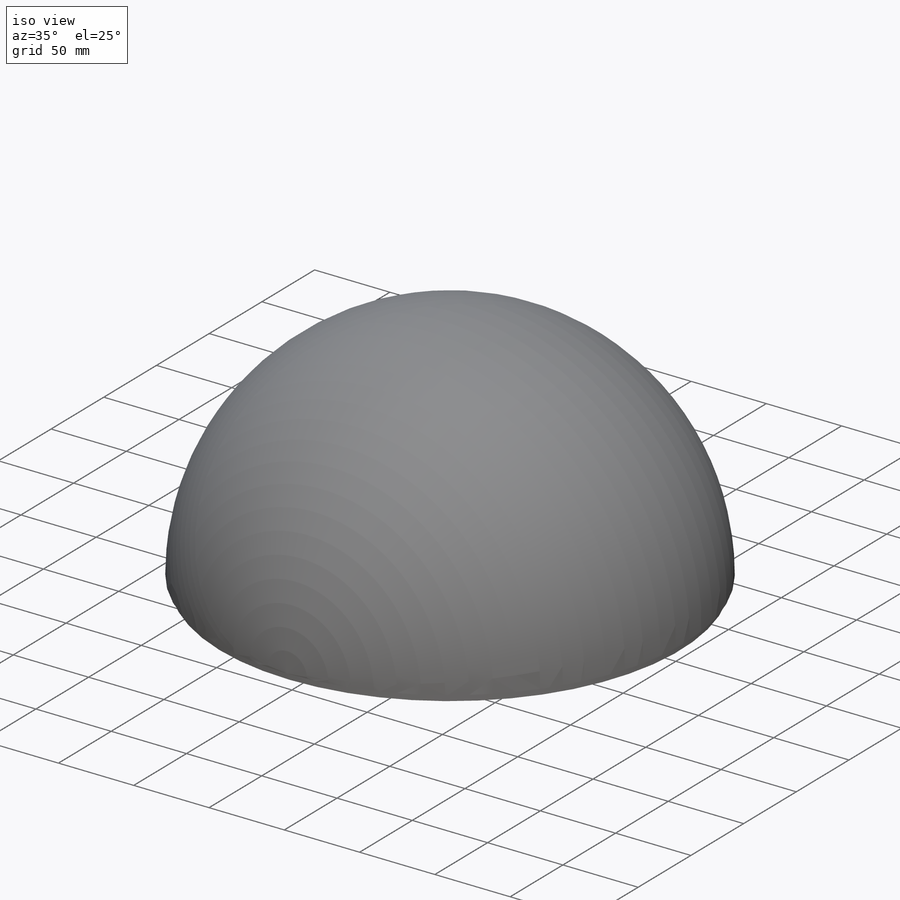
[diagram: iso view]
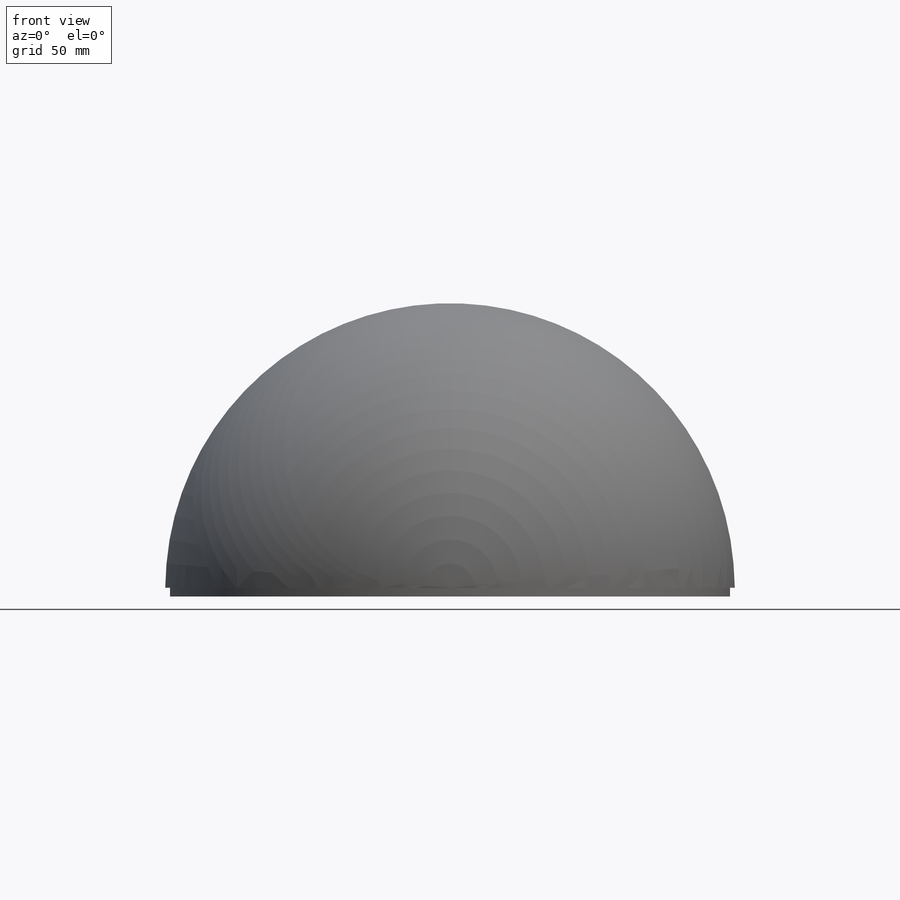
[diagram: front view]
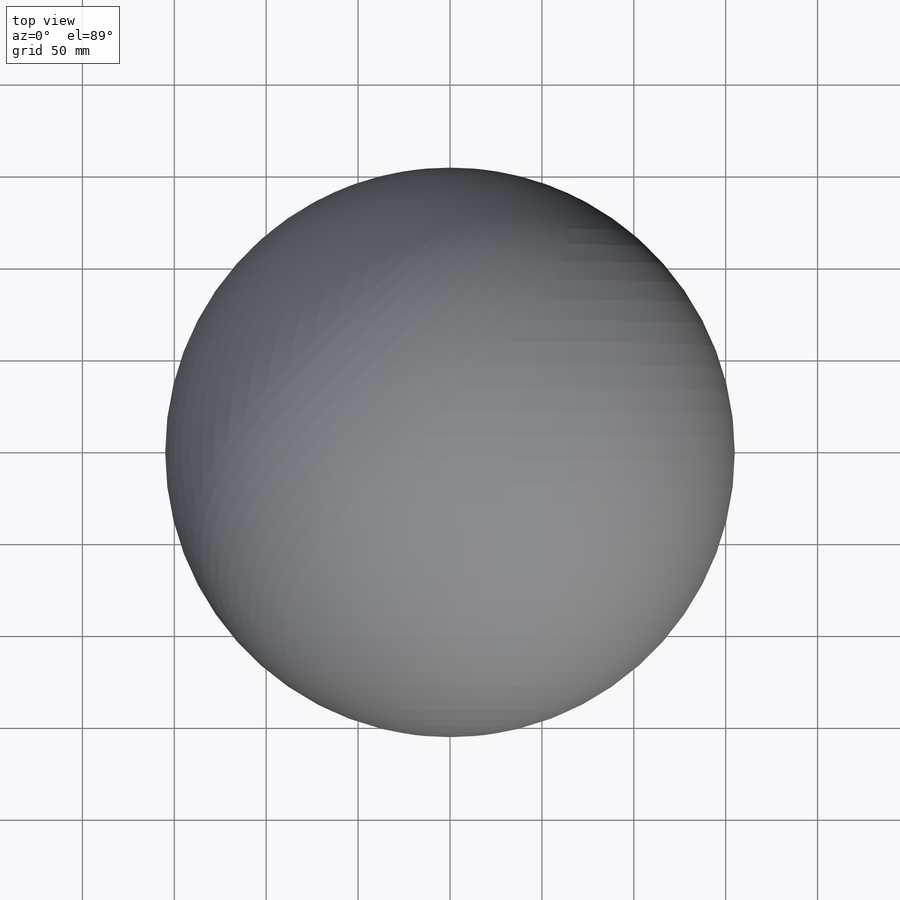
[diagram: top view]
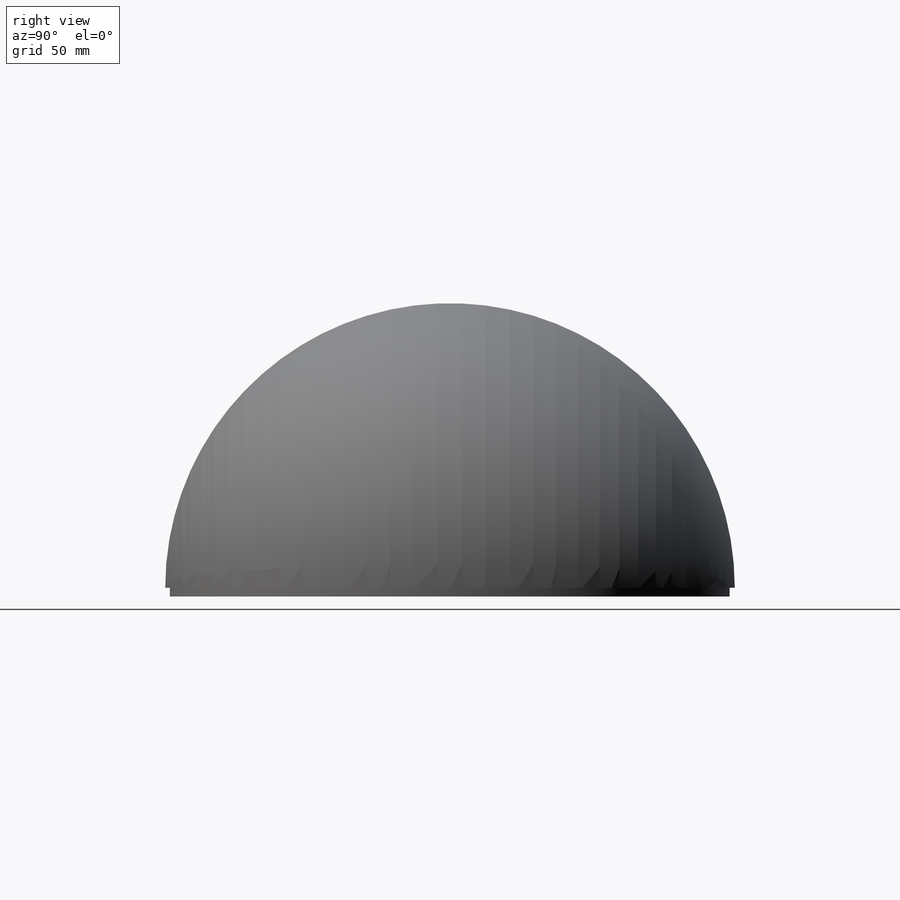
[diagram: right view]
SOLIDWORKS PART (.sldprt)
format: sldprt  version: not decoded by parser v0  size: 214,016 bytes
history: native  units: mm
features: sketch x3, material x1, revolve x1, shell x1, extrude x1 (+12 scaffold rows collapsed)
feature tree (19):
  scaffold x12  (default folders/planes/origin — collapsed)
  material  "Material <not specified>"
  sketch  "Sketch1"  dims[D1=304.8mm]
  revolve  "Revolve1"  Angle=180deg
  shell  "Shell1"  Thickness=2.54mm
  sketch  "Sketch2"  dims[D1=304.8mm]
  extrude  "Boss-Extrude1"  Depth=4.7625mm
  sketch  "Sketch3"
decode coverage: 5 of 6 modeling features carry decoded parameters
note: suppression state not decoded; provenance and decode notes live in map.json
